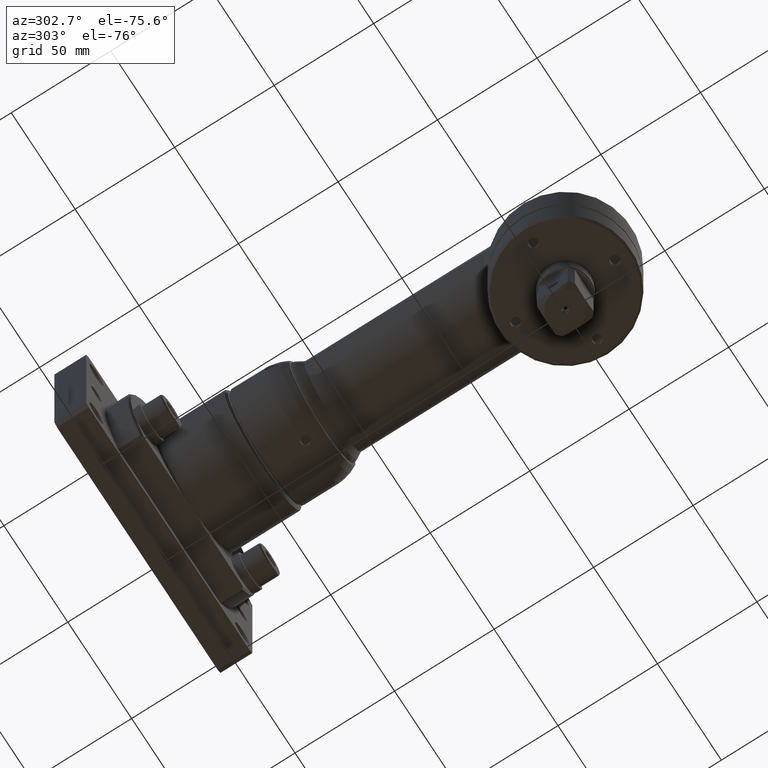
[diagram: clean part render]
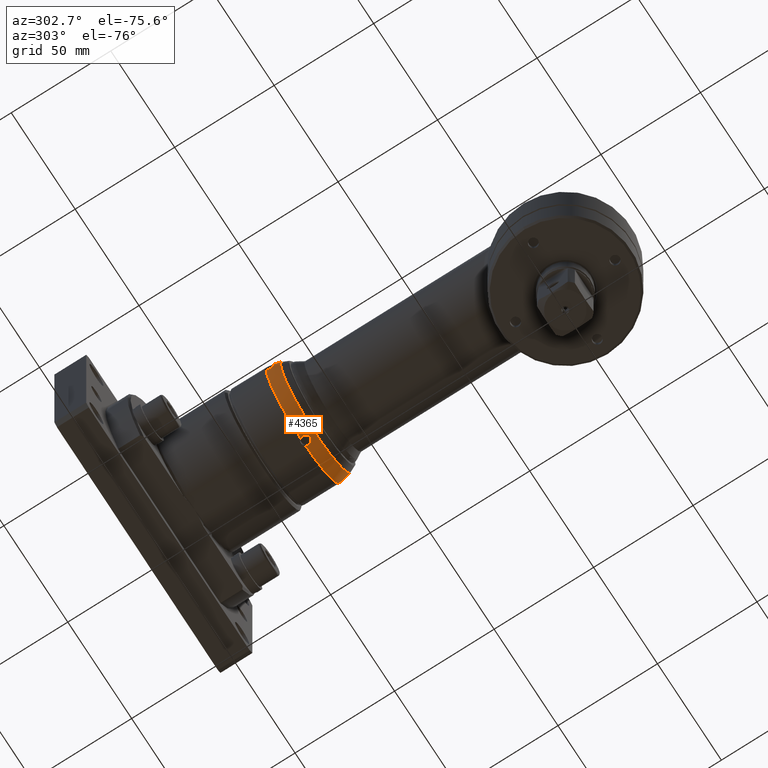
[diagram: same view with one face highlighted and labeled with its STEP entity id]
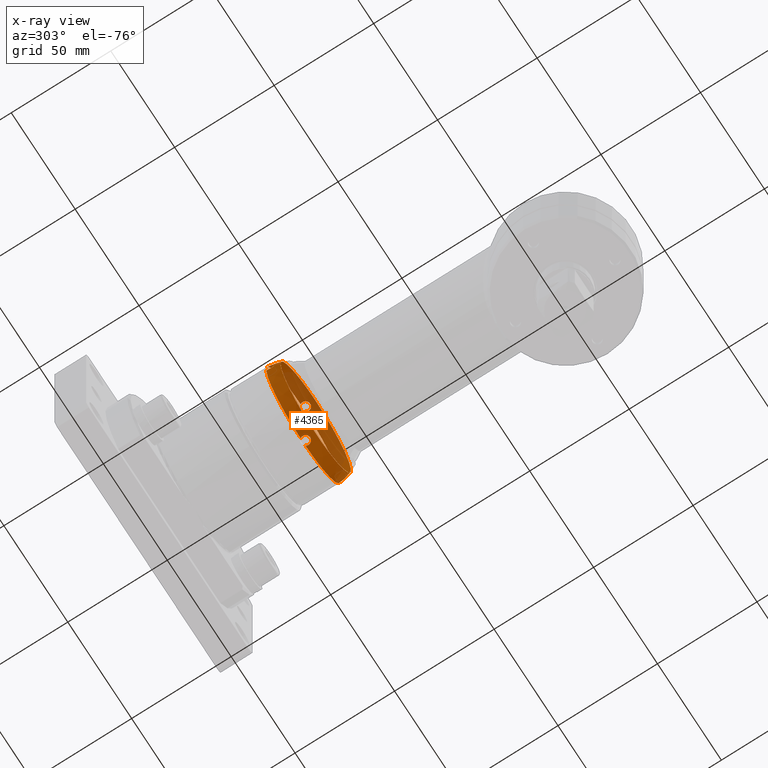
[diagram: x-ray of the same camera — body ghosted, the highlighted face saturated]
A machine part, auxiliary view. The second image highlights one B-rep face of the part: STEP entity #4365.
The next image is the same camera in x-ray: the body ghosted, the highlighted face saturated — about 39% of this face is hidden behind the body in this view.
In plain terms, the highlighted face is a freeform B-spline surface patch.
Its self-contained STEP definition (entity closure, byte-faithful):
#33=(
BOUNDED_SURFACE()
B_SPLINE_SURFACE(2,2,((#7202,#7203,#7204,#7205,#7206,#7207,#7208,#7209,
#7210),(#7211,#7212,#7213,#7214,#7215,#7216,#7217,#7218,#7219),(#7220,#7221,
#7222,#7223,#7224,#7225,#7226,#7227,#7228)),.UNSPECIFIED.,.F.,.T.,.F.)
B_SPLINE_SURFACE_WITH_KNOTS((3,3),(3,2,2,2,3),(-0.436332312998584,5.22063444595957E-16),
(-3.14159265358979,-1.5707963267949,0.,1.5707963267949,3.14159265358979),
 .UNSPECIFIED.)
GEOMETRIC_REPRESENTATION_ITEM()
RATIONAL_B_SPLINE_SURFACE(((1.,0.707106781186548,1.,0.707106781186548,1.,
0.707106781186548,1.,0.707106781186548,1.),(0.976296007119913,0.690345527079841,
0.976296007119913,0.690345527079841,0.976296007119913,0.690345527079841,
0.976296007119913,0.690345527079841,0.976296007119913),(1.,0.707106781186548,
1.,0.707106781186548,1.,0.707106781186548,1.,0.707106781186548,1.)))
REPRESENTATION_ITEM('')
SURFACE()
);
#40=(
BOUNDED_CURVE()
B_SPLINE_CURVE(2,(#7230,#7231,#7232),.UNSPECIFIED.,.F.,.F.)
B_SPLINE_CURVE_WITH_KNOTS((3,3),(0.239463070267476,0.436332312998584),
 .UNSPECIFIED.)
CURVE()
GEOMETRIC_REPRESENTATION_ITEM()
RATIONAL_B_SPLINE_CURVE((0.988260944161363,0.989304970113407,1.))
REPRESENTATION_ITEM('')
);
#78=B_SPLINE_CURVE_WITH_KNOTS('',3,(#6977,#6978,#6979,#6980,#6981,#6982),
 .UNSPECIFIED.,.F.,.F.,(4,2,4),(1.45252363211347,1.54151102947429,1.58642004414061),
 .UNSPECIFIED.);
#81=B_SPLINE_CURVE_WITH_KNOTS('',3,(#7001,#7002,#7003,#7004,#7005,#7006,
#7007,#7008,#7009,#7010,#7011,#7012,#7013,#7014,#7015,#7016,#7017,#7018,
#7019,#7020,#7021,#7022,#7023,#7024),.UNSPECIFIED.,.F.,.F.,(4,2,2,2,2,2,
2,2,2,2,2,4),(1.58642004414061,1.63166947877497,1.72350590285626,1.80686499335692,
1.89300933337653,1.97573283851944,2.06003012041522,2.15043110751916,2.24037156059606,
2.33105106582288,2.42222135600999,2.44755810338013),.UNSPECIFIED.);
#82=B_SPLINE_CURVE_WITH_KNOTS('',3,(#7044,#7045,#7046,#7047,#7048,#7049),
 .UNSPECIFIED.,.F.,.F.,(4,2,4),(0.457564260932313,0.528158609510074,0.591513390285459),
 .UNSPECIFIED.);
#85=B_SPLINE_CURVE_WITH_KNOTS('',3,(#7069,#7070,#7071,#7072,#7073,#7074,
#7075,#7076,#7077,#7078,#7079,#7080,#7081,#7082,#7083,#7084),
 .UNSPECIFIED.,.F.,.F.,(4,2,2,2,2,2,2,4),(0.955181562477162,0.971865596657126,
1.05575365381431,1.14532783138233,1.23516008338938,1.3257799048816,1.41689698999684,
1.45262684494953),.UNSPECIFIED.);
#86=B_SPLINE_CURVE_WITH_KNOTS('',3,(#7085,#7086,#7087,#7088,#7089,#7090,
#7091,#7092,#7093,#7094,#7095,#7096),.UNSPECIFIED.,.F.,.F.,(4,2,2,2,2,4),
(0.591513390285459,0.618009742759396,0.709510768436431,0.802210383403831,
0.889003864128221,0.955181562477162),.UNSPECIFIED.);
#87=B_SPLINE_CURVE_WITH_KNOTS('',3,(#7101,#7102,#7103,#7104,#7105,#7106),
 .UNSPECIFIED.,.F.,.F.,(4,2,4),(1.45252363211279,1.54151102947361,1.58642004413992),
 .UNSPECIFIED.);
#90=B_SPLINE_CURVE_WITH_KNOTS('',3,(#7125,#7126,#7127,#7128,#7129,#7130,
#7131,#7132,#7133,#7134,#7135,#7136,#7137,#7138,#7139,#7140,#7141,#7142,
#7143,#7144,#7145,#7146,#7147,#7148),.UNSPECIFIED.,.F.,.F.,(4,2,2,2,2,2,
2,2,2,2,2,4),(1.58642004413992,1.63166947877427,1.72350590285554,1.80686499335617,
1.89300933337574,1.97573283851862,2.06003012041437,2.15043110751826,2.24037156059511,
2.33105106582188,2.42222135600895,2.44755810337907),.UNSPECIFIED.);
#91=B_SPLINE_CURVE_WITH_KNOTS('',3,(#7153,#7154,#7155,#7156,#7157,#7158),
 .UNSPECIFIED.,.F.,.F.,(4,2,4),(1.45252363211326,1.54151102947409,1.58642004414041),
 .UNSPECIFIED.);
#94=B_SPLINE_CURVE_WITH_KNOTS('',3,(#7177,#7178,#7179,#7180,#7181,#7182,
#7183,#7184,#7185,#7186,#7187,#7188,#7189,#7190,#7191,#7192,#7193,#7194,
#7195,#7196,#7197,#7198,#7199,#7200),.UNSPECIFIED.,.F.,.F.,(4,2,2,2,2,2,
2,2,2,2,2,4),(1.58642004414041,1.63166947877476,1.72350590285605,1.8068649933567,
1.89300933337629,1.9757328385192,2.06003012041497,2.15043110751889,2.24037156059577,
2.33105106582258,2.42222135600968,2.44755810337981),.UNSPECIFIED.);
#774=FACE_OUTER_BOUND('',#1030,.T.);
#1030=EDGE_LOOP('',(#3016,#3017,#3018,#3019,#3020,#3021,#3022,#3023,#3024,
#3025,#3026,#3027,#3028,#3029,#3030,#3031,#3032,#3033));
#1338=CIRCLE('',#4685,27.5946168055497);
#1339=CIRCLE('',#4686,27.5946168055497);
#1340=CIRCLE('',#4687,27.5946168055497);
#1341=CIRCLE('',#4688,29.);
#1342=CIRCLE('',#4689,29.);
#1343=CIRCLE('',#4690,29.);
#1344=CIRCLE('',#4691,29.);
#1722=VERTEX_POINT('',#6975);
#1723=VERTEX_POINT('',#6976);
#1725=VERTEX_POINT('',#6992);
#1732=VERTEX_POINT('',#7042);
#1733=VERTEX_POINT('',#7043);
#1735=VERTEX_POINT('',#7059);
#1736=VERTEX_POINT('',#7068);
#1737=VERTEX_POINT('',#7099);
#1738=VERTEX_POINT('',#7100);
#1740=VERTEX_POINT('',#7116);
#1741=VERTEX_POINT('',#7151);
#1742=VERTEX_POINT('',#7152);
#1744=VERTEX_POINT('',#7168);
#1745=VERTEX_POINT('',#7229);
#1746=VERTEX_POINT('',#7233);
#1747=VERTEX_POINT('',#7235);
#2212=EDGE_CURVE('',#1722,#1723,#78,.T.);
#2215=EDGE_CURVE('',#1723,#1725,#81,.T.);
#2223=EDGE_CURVE('',#1732,#1733,#82,.T.);
#2226=EDGE_CURVE('',#1736,#1735,#85,.T.);
#2227=EDGE_CURVE('',#1733,#1736,#86,.T.);
#2229=EDGE_CURVE('',#1737,#1738,#87,.T.);
#2232=EDGE_CURVE('',#1738,#1740,#90,.T.);
#2234=EDGE_CURVE('',#1741,#1742,#91,.T.);
#2237=EDGE_CURVE('',#1742,#1744,#94,.T.);
#2239=EDGE_CURVE('',#1736,#1745,#40,.T.);
#2240=EDGE_CURVE('',#1745,#1746,#1338,.T.);
#2241=EDGE_CURVE('',#1746,#1747,#1339,.T.);
#2242=EDGE_CURVE('',#1747,#1745,#1340,.T.);
#2243=EDGE_CURVE('',#1735,#1722,#1341,.T.);
#2244=EDGE_CURVE('',#1725,#1737,#1342,.T.);
#2245=EDGE_CURVE('',#1740,#1741,#1343,.T.);
#2246=EDGE_CURVE('',#1744,#1732,#1344,.T.);
#3016=ORIENTED_EDGE('',*,*,#2223,.T.);
#3017=ORIENTED_EDGE('',*,*,#2227,.T.);
#3018=ORIENTED_EDGE('',*,*,#2239,.T.);
#3019=ORIENTED_EDGE('',*,*,#2240,.T.);
#3020=ORIENTED_EDGE('',*,*,#2241,.T.);
#3021=ORIENTED_EDGE('',*,*,#2242,.T.);
#3022=ORIENTED_EDGE('',*,*,#2239,.F.);
#3023=ORIENTED_EDGE('',*,*,#2226,.T.);
#3024=ORIENTED_EDGE('',*,*,#2243,.T.);
#3025=ORIENTED_EDGE('',*,*,#2212,.T.);
#3026=ORIENTED_EDGE('',*,*,#2215,.T.);
#3027=ORIENTED_EDGE('',*,*,#2244,.T.);
#3028=ORIENTED_EDGE('',*,*,#2229,.T.);
#3029=ORIENTED_EDGE('',*,*,#2232,.T.);
#3030=ORIENTED_EDGE('',*,*,#2245,.T.);
#3031=ORIENTED_EDGE('',*,*,#2234,.T.);
#3032=ORIENTED_EDGE('',*,*,#2237,.T.);
#3033=ORIENTED_EDGE('',*,*,#2246,.T.);
#4365=ADVANCED_FACE('',(#774),#33,.F.);
#4685=AXIS2_PLACEMENT_3D('',#7234,#5427,#5428);
#4686=AXIS2_PLACEMENT_3D('',#7236,#5429,#5430);
#4687=AXIS2_PLACEMENT_3D('',#7237,#5431,#5432);
#4688=AXIS2_PLACEMENT_3D('',#7238,#5433,#5434);
#4689=AXIS2_PLACEMENT_3D('',#7239,#5435,#5436);
#4690=AXIS2_PLACEMENT_3D('',#7240,#5437,#5438);
#4691=AXIS2_PLACEMENT_3D('',#7241,#5439,#5440);
#5427=DIRECTION('center_axis',(2.95888610257492E-16,1.,-8.06750557851536E-16));
#5428=DIRECTION('ref_axis',(0.707106781186549,-7.79683632971787E-16,-0.707106781186546));
#5429=DIRECTION('center_axis',(2.95888610257492E-16,1.,-8.06750557851536E-16));
#5430=DIRECTION('ref_axis',(0.707106781186549,-7.79683632971787E-16,-0.707106781186546));
#5431=DIRECTION('center_axis',(2.95888610257492E-16,1.,-8.06750557851536E-16));
#5432=DIRECTION('ref_axis',(0.707106781186549,-7.79683632971787E-16,-0.707106781186546));
#5433=DIRECTION('center_axis',(-3.24337863054654E-16,-1.,8.18789480661057E-16));
#5434=DIRECTION('ref_axis',(0.707106781186549,-8.150425356873E-16,-0.707106781186546));
#5435=DIRECTION('center_axis',(-3.24337863054654E-16,-1.,8.18789480661057E-16));
#5436=DIRECTION('ref_axis',(0.707106781186549,-8.150425356873E-16,-0.707106781186546));
#5437=DIRECTION('center_axis',(-3.24337863054654E-16,-1.,8.18789480661057E-16));
#5438=DIRECTION('ref_axis',(0.707106781186549,-8.150425356873E-16,-0.707106781186546));
#5439=DIRECTION('center_axis',(-3.24337863054654E-16,-1.,8.18789480661057E-16));
#5440=DIRECTION('ref_axis',(0.707106781186549,-8.150425356873E-16,-0.707106781186546));
#6975=CARTESIAN_POINT('',(-1.92485541513373,131.758940689607,-28.9360489982797));
#6976=CARTESIAN_POINT('',(-2.29999999999996,130.5,-28.85555725459));
#6977=CARTESIAN_POINT('Ctrl Pts',(-1.92485540984292,131.758940686131,-28.9360489986317));
#6978=CARTESIAN_POINT('Ctrl Pts',(-2.08710999923811,131.510861783281,-28.9252556580689));
#6979=CARTESIAN_POINT('Ctrl Pts',(-2.19973783392924,131.233991403008,-28.9101243358409));
#6980=CARTESIAN_POINT('Ctrl Pts',(-2.28562403116255,130.797036982948,-28.8795560857451));
#6981=CARTESIAN_POINT('Ctrl Pts',(-2.29999999999996,130.648474232846,-28.8681023902828));
#6982=CARTESIAN_POINT('Ctrl Pts',(-2.29999999999996,130.5,-28.85555725459));
#6992=CARTESIAN_POINT('',(1.92485541513381,131.758940689607,-28.9360489982797));
#7001=CARTESIAN_POINT('Ctrl Pts',(-2.29999999999996,130.5,-28.85555725459));
#7002=CARTESIAN_POINT('Ctrl Pts',(-2.29999999999996,130.350400302617,-28.8429170242464));
#7003=CARTESIAN_POINT('Ctrl Pts',(-2.28540494727702,130.200890495236,-28.8291684401034));
#7004=CARTESIAN_POINT('Ctrl Pts',(-2.1971233557519,129.754679201341,-28.7848644528748));
#7005=CARTESIAN_POINT('Ctrl Pts',(-2.07919167114597,129.470611070839,-28.752047002306));
#7006=CARTESIAN_POINT('Ctrl Pts',(-1.75544508735835,128.988453934041,-28.6905112349224));
#7007=CARTESIAN_POINT('Ctrl Pts',(-1.56117238539515,128.788457718003,-28.6622404620575));
#7008=CARTESIAN_POINT('Ctrl Pts',(-1.1029296429189,128.461522823398,-28.6137535408553));
#7009=CARTESIAN_POINT('Ctrl Pts',(-0.840762864238996,128.34003773313,-28.5943442891986));
#7010=CARTESIAN_POINT('Ctrl Pts',(-0.295413379975349,128.20247044375,-28.5721700268484));
#7011=CARTESIAN_POINT('Ctrl Pts',(-0.0183120761655834,128.183608576838,
-28.5690112134072));
#7012=CARTESIAN_POINT('Ctrl Pts',(0.534861590466751,128.245482967739,-28.5791101311449));
#7013=CARTESIAN_POINT('Ctrl Pts',(0.805586173616262,128.327538849767,-28.5925670676066));
#7014=CARTESIAN_POINT('Ctrl Pts',(1.32177234648596,128.593888166948,-28.6337047610526));
#7015=CARTESIAN_POINT('Ctrl Pts',(1.55890744536504,128.782539644893,-28.661850790536));
#7016=CARTESIAN_POINT('Ctrl Pts',(1.94605314624124,129.238323972959,-28.7232913851299));
#7017=CARTESIAN_POINT('Ctrl Pts',(2.09308943812176,129.501030730705,-28.7559102160177));
#7018=CARTESIAN_POINT('Ctrl Pts',(2.27942620207394,130.070294014824,-28.817568134433));
#7019=CARTESIAN_POINT('Ctrl Pts',(2.3161256053114,130.371975221746,-28.8459545240423));
#7020=CARTESIAN_POINT('Ctrl Pts',(2.27079578811786,130.97465828952,-28.8934603776657));
#7021=CARTESIAN_POINT('Ctrl Pts',(2.18857438969639,131.269622420988,-28.9120739070447));
#7022=CARTESIAN_POINT('Ctrl Pts',(2.0130740758841,131.61563959528,-28.9295739770529));
#7023=CARTESIAN_POINT('Ctrl Pts',(1.97086810514513,131.688589647,-28.9329881872706));
#7024=CARTESIAN_POINT('Ctrl Pts',(1.92485540984299,131.758940686131,-28.9360489986317));
#7042=CARTESIAN_POINT('',(-28.9360489982795,131.758940689607,1.92485541513348));
#7043=CARTESIAN_POINT('',(-28.8555572545898,130.5,2.29999999999971));
#7044=CARTESIAN_POINT('Ctrl Pts',(-28.9360489986314,131.758940686132,1.92485540984267));
#7045=CARTESIAN_POINT('Ctrl Pts',(-28.9275136553014,131.562760588184,2.05316588233426));
#7046=CARTESIAN_POINT('Ctrl Pts',(-28.9162648349874,131.347921927443,2.15085985500654));
#7047=CARTESIAN_POINT('Ctrl Pts',(-28.8887376116456,130.91883985013,2.2713448903516));
#7048=CARTESIAN_POINT('Ctrl Pts',(-28.8732687627411,130.709619301832,2.29999999999971));
#7049=CARTESIAN_POINT('Ctrl Pts',(-28.8555572545898,130.5,2.29999999999971));
#7059=CARTESIAN_POINT('',(-28.9360489982795,131.758940689607,-1.92485541513406));
#7068=CARTESIAN_POINT('',(-28.5716828501562,128.2,-2.87554425490751E-13));
#7069=CARTESIAN_POINT('Ctrl Pts',(-28.5716828501562,128.2,-2.8805387987217E-13));
#7070=CARTESIAN_POINT('Ctrl Pts',(-28.5716828501562,128.2,-0.0554454999037644));
#7071=CARTESIAN_POINT('Ctrl Pts',(-28.5720113408865,128.202004845443,-0.110951460860113));
#7072=CARTESIAN_POINT('Ctrl Pts',(-28.5759769571487,128.226256846174,-0.445264566509629));
#7073=CARTESIAN_POINT('Ctrl Pts',(-28.5876630945922,128.29711689196,-0.717738199230613));
#7074=CARTESIAN_POINT('Ctrl Pts',(-28.625629534935,128.540594224668,-1.240758390415));
#7075=CARTESIAN_POINT('Ctrl Pts',(-28.6523925323445,128.717404421136,-1.48344367067562));
#7076=CARTESIAN_POINT('Ctrl Pts',(-28.7123292004657,129.153454130575,-1.88827318119442));
#7077=CARTESIAN_POINT('Ctrl Pts',(-28.7448817477126,129.40907107424,-2.04660381421195));
#7078=CARTESIAN_POINT('Ctrl Pts',(-28.8073379161825,129.968823505228,-2.25790322177281));
#7079=CARTESIAN_POINT('Ctrl Pts',(-28.8365854377036,130.268283977467,-2.30802012493892));
#7080=CARTESIAN_POINT('Ctrl Pts',(-28.8862056801345,130.87182269123,-2.28984599435392));
#7081=CARTESIAN_POINT('Ctrl Pts',(-28.9060481095014,131.169936751005,-2.22108398454936));
#7082=CARTESIAN_POINT('Ctrl Pts',(-28.9266862732987,131.554846713585,-2.04730297566818));
#7083=CARTESIAN_POINT('Ctrl Pts',(-28.931715300838,131.659333063485,-1.99000320648152));
#7084=CARTESIAN_POINT('Ctrl Pts',(-28.9360489986314,131.758940686132,-1.92485540984324));
#7085=CARTESIAN_POINT('Ctrl Pts',(-28.8555572545898,130.5,2.29999999999971));
#7086=CARTESIAN_POINT('Ctrl Pts',(-28.8481499152054,130.412332631591,2.29999999999971));
#7087=CARTESIAN_POINT('Ctrl Pts',(-28.840355730104,130.324595059228,2.29498787611242));
#7088=CARTESIAN_POINT('Ctrl Pts',(-28.8040963486266,129.93546206896,2.25023469417586));
#7089=CARTESIAN_POINT('Ctrl Pts',(-28.7722352295093,129.643788021709,2.15612945188395));
#7090=CARTESIAN_POINT('Ctrl Pts',(-28.7071456338739,129.110646231411,1.85852498707164));
#7091=CARTESIAN_POINT('Ctrl Pts',(-28.6746030460921,128.874850335657,1.65637990954446));
#7092=CARTESIAN_POINT('Ctrl Pts',(-28.6210425871298,128.508611398172,1.18633629303179));
#7093=CARTESIAN_POINT('Ctrl Pts',(-28.5999851646645,128.37554018908,0.927462838341365));
#7094=CARTESIAN_POINT('Ctrl Pts',(-28.5768992626648,128.231538048891,0.438901069193313));
#7095=CARTESIAN_POINT('Ctrl Pts',(-28.5716828501562,128.2,0.21992615981453));
#7096=CARTESIAN_POINT('Ctrl Pts',(-28.5716828501562,128.2,-2.86090595658095E-13));
#7099=CARTESIAN_POINT('',(28.9360489982795,131.758940689607,-1.92485541513395));
#7100=CARTESIAN_POINT('',(28.8555572545897,130.5,-2.30000000000018));
#7101=CARTESIAN_POINT('Ctrl Pts',(28.9360489986314,131.758940686132,-1.92485540984314));
#7102=CARTESIAN_POINT('Ctrl Pts',(28.9252556580686,131.510861783281,-2.08710999923832));
#7103=CARTESIAN_POINT('Ctrl Pts',(28.9101243358407,131.233991403008,-2.19973783392945));
#7104=CARTESIAN_POINT('Ctrl Pts',(28.8795560857448,130.797036982948,-2.28562403116277));
#7105=CARTESIAN_POINT('Ctrl Pts',(28.8681023902825,130.648474232846,-2.30000000000018));
#7106=CARTESIAN_POINT('Ctrl Pts',(28.8555572545897,130.5,-2.30000000000018));
#7116=CARTESIAN_POINT('',(28.9360489982794,131.758940689607,1.92485541513359));
#7125=CARTESIAN_POINT('Ctrl Pts',(28.8555572545897,130.5,-2.30000000000018));
#7126=CARTESIAN_POINT('Ctrl Pts',(28.8429170242461,130.350400302617,-2.30000000000018));
#7127=CARTESIAN_POINT('Ctrl Pts',(28.8291684401031,130.200890495236,-2.28540494727723));
#7128=CARTESIAN_POINT('Ctrl Pts',(28.7848644528745,129.754679201341,-2.19712335575212));
#7129=CARTESIAN_POINT('Ctrl Pts',(28.7520470023057,129.470611070839,-2.07919167114621));
#7130=CARTESIAN_POINT('Ctrl Pts',(28.6905112349221,128.988453934041,-1.75544508735858));
#7131=CARTESIAN_POINT('Ctrl Pts',(28.6622404620572,128.788457718003,-1.56117238539538));
#7132=CARTESIAN_POINT('Ctrl Pts',(28.613753540855,128.461522823398,-1.10292964291913));
#7133=CARTESIAN_POINT('Ctrl Pts',(28.5943442891983,128.34003773313,-0.840762864239226));
#7134=CARTESIAN_POINT('Ctrl Pts',(28.5721700268481,128.20247044375,-0.295413379975581));
#7135=CARTESIAN_POINT('Ctrl Pts',(28.5690112134069,128.183608576838,-0.0183120761658156));
#7136=CARTESIAN_POINT('Ctrl Pts',(28.5791101311446,128.245482967739,0.534861590466509));
#7137=CARTESIAN_POINT('Ctrl Pts',(28.5925670676064,128.327538849767,0.805586173616014));
#7138=CARTESIAN_POINT('Ctrl Pts',(28.6337047610523,128.593888166948,1.32177234648574));
#7139=CARTESIAN_POINT('Ctrl Pts',(28.6618507905358,128.782539644893,1.55890744536482));
#7140=CARTESIAN_POINT('Ctrl Pts',(28.7232913851297,129.238323972959,1.94605314624101));
#7141=CARTESIAN_POINT('Ctrl Pts',(28.7559102160174,129.501030730705,2.09308943812153));
#7142=CARTESIAN_POINT('Ctrl Pts',(28.8175681344327,130.070294014824,2.27942620207371));
#7143=CARTESIAN_POINT('Ctrl Pts',(28.8459545240421,130.371975221746,2.31612560531117));
#7144=CARTESIAN_POINT('Ctrl Pts',(28.8934603776654,130.97465828952,2.27079578811764));
#7145=CARTESIAN_POINT('Ctrl Pts',(28.9120739070444,131.269622420988,2.18857438969618));
#7146=CARTESIAN_POINT('Ctrl Pts',(28.9295739770526,131.61563959528,2.01307407588388));
#7147=CARTESIAN_POINT('Ctrl Pts',(28.9329881872703,131.688589647,1.97086810514491));
#7148=CARTESIAN_POINT('Ctrl Pts',(28.9360489986314,131.758940686132,1.92485540984277));
#7151=CARTESIAN_POINT('',(1.9248554151337,131.758940689607,28.9360489982792));
#7152=CARTESIAN_POINT('',(2.29999999999993,130.5,28.8555572545895));
#7153=CARTESIAN_POINT('Ctrl Pts',(1.92485540984288,131.758940686132,28.9360489986312));
#7154=CARTESIAN_POINT('Ctrl Pts',(2.08710999923807,131.510861783281,28.9252556580684));
#7155=CARTESIAN_POINT('Ctrl Pts',(2.19973783392921,131.233991403008,28.9101243358405));
#7156=CARTESIAN_POINT('Ctrl Pts',(2.28562403116252,130.797036982948,28.8795560857446));
#7157=CARTESIAN_POINT('Ctrl Pts',(2.29999999999993,130.648474232846,28.8681023902823));
#7158=CARTESIAN_POINT('Ctrl Pts',(2.29999999999993,130.5,28.8555572545895));
#7168=CARTESIAN_POINT('',(-1.92485541513384,131.758940689607,28.9360489982792));
#7177=CARTESIAN_POINT('Ctrl Pts',(2.29999999999993,130.5,28.8555572545895));
#7178=CARTESIAN_POINT('Ctrl Pts',(2.29999999999993,130.350400302617,28.8429170242459));
#7179=CARTESIAN_POINT('Ctrl Pts',(2.28540494727698,130.200890495236,28.8291684401029));
#7180=CARTESIAN_POINT('Ctrl Pts',(2.19712335575187,129.754679201341,28.7848644528743));
#7181=CARTESIAN_POINT('Ctrl Pts',(2.07919167114596,129.470611070839,28.7520470023055));
#7182=CARTESIAN_POINT('Ctrl Pts',(1.75544508735832,128.988453934041,28.6905112349219));
#7183=CARTESIAN_POINT('Ctrl Pts',(1.56117238539513,128.788457718003,28.662240462057));
#7184=CARTESIAN_POINT('Ctrl Pts',(1.10292964291889,128.461522823398,28.6137535408548));
#7185=CARTESIAN_POINT('Ctrl Pts',(0.840762864238985,128.34003773313,28.5943442891981));
#7186=CARTESIAN_POINT('Ctrl Pts',(0.295413379975328,128.20247044375,28.5721700268479));
#7187=CARTESIAN_POINT('Ctrl Pts',(0.0183120761655666,128.183608576838,28.5690112134067));
#7188=CARTESIAN_POINT('Ctrl Pts',(-0.534861590466756,128.245482967739,28.5791101311444));
#7189=CARTESIAN_POINT('Ctrl Pts',(-0.805586173616263,128.327538849767,28.5925670676061));
#7190=CARTESIAN_POINT('Ctrl Pts',(-1.32177234648599,128.593888166948,28.6337047610521));
#7191=CARTESIAN_POINT('Ctrl Pts',(-1.55890744536507,128.782539644893,28.6618507905355));
#7192=CARTESIAN_POINT('Ctrl Pts',(-1.94605314624126,129.238323972959,28.7232913851295));
#7193=CARTESIAN_POINT('Ctrl Pts',(-2.09308943812178,129.501030730705,28.7559102160172));
#7194=CARTESIAN_POINT('Ctrl Pts',(-2.27942620207397,130.070294014824,28.8175681344325));
#7195=CARTESIAN_POINT('Ctrl Pts',(-2.31612560531143,130.371975221746,28.8459545240419));
#7196=CARTESIAN_POINT('Ctrl Pts',(-2.2707957881179,130.97465828952,28.8934603776652));
#7197=CARTESIAN_POINT('Ctrl Pts',(-2.18857438969643,131.269622420988,28.9120739070442));
#7198=CARTESIAN_POINT('Ctrl Pts',(-2.01307407588413,131.61563959528,28.9295739770524));
#7199=CARTESIAN_POINT('Ctrl Pts',(-1.97086810514515,131.688589647,28.9329881872701));
#7200=CARTESIAN_POINT('Ctrl Pts',(-1.92485540984302,131.758940686132,28.9360489986312));
#7202=CARTESIAN_POINT('Ctrl Pts',(-27.5946168055498,125.419666775062,-2.87347142188761E-13));
#7203=CARTESIAN_POINT('Ctrl Pts',(-27.5946168055498,125.419666775062,27.5946168055495));
#7204=CARTESIAN_POINT('Ctrl Pts',(-7.3686707442867E-14,125.419666775062,
27.5946168055495));
#7205=CARTESIAN_POINT('Ctrl Pts',(27.5946168055497,125.419666775062,27.5946168055496));
#7206=CARTESIAN_POINT('Ctrl Pts',(27.5946168055497,125.419666775062,-1.78773342791329E-13));
#7207=CARTESIAN_POINT('Ctrl Pts',(27.5946168055498,125.419666775062,-27.5946168055499));
#7208=CARTESIAN_POINT('Ctrl Pts',(3.4887091954565E-14,125.419666775062,
-27.59461680555));
#7209=CARTESIAN_POINT('Ctrl Pts',(-27.5946168055497,125.419666775062,-27.59461680555));
#7210=CARTESIAN_POINT('Ctrl Pts',(-27.5946168055498,125.419666775062,-2.87347142188761E-13));
#7211=CARTESIAN_POINT('Ctrl Pts',(-29.,128.433520761528,-2.92579664999777E-13));
#7212=CARTESIAN_POINT('Ctrl Pts',(-29.0000000000001,128.433520761528,28.9999999999997));
#7213=CARTESIAN_POINT('Ctrl Pts',(-7.54740113519869E-14,128.433520761528,
28.9999999999998));
#7214=CARTESIAN_POINT('Ctrl Pts',(28.9999999999999,128.433520761528,28.9999999999998));
#7215=CARTESIAN_POINT('Ctrl Pts',(29.,128.433520761528,-1.78476243861047E-13));
#7216=CARTESIAN_POINT('Ctrl Pts',(29.,128.433520761528,-29.0000000000002));
#7217=CARTESIAN_POINT('Ctrl Pts',(3.86294097867435E-14,128.433520761528,
-29.0000000000002));
#7218=CARTESIAN_POINT('Ctrl Pts',(-29.,128.433520761528,-29.0000000000003));
#7219=CARTESIAN_POINT('Ctrl Pts',(-29.,128.433520761528,-2.92579664999777E-13));
#7220=CARTESIAN_POINT('Ctrl Pts',(-29.,131.758940701172,-2.95302483865138E-13));
#7221=CARTESIAN_POINT('Ctrl Pts',(-29.0000000000001,131.758940701172,28.9999999999997));
#7222=CARTESIAN_POINT('Ctrl Pts',(-7.43954517550033E-14,131.758940701172,
28.9999999999998));
#7223=CARTESIAN_POINT('Ctrl Pts',(28.9999999999999,131.758940701172,28.9999999999998));
#7224=CARTESIAN_POINT('Ctrl Pts',(29.,131.758940701172,-1.81199062726408E-13));
#7225=CARTESIAN_POINT('Ctrl Pts',(29.,131.758940701172,-29.0000000000002));
#7226=CARTESIAN_POINT('Ctrl Pts',(3.97079693837269E-14,131.758940701172,
-29.0000000000002));
#7227=CARTESIAN_POINT('Ctrl Pts',(-29.,131.758940701172,-29.0000000000003));
#7228=CARTESIAN_POINT('Ctrl Pts',(-29.,131.758940701172,-2.95302483865138E-13));
#7229=CARTESIAN_POINT('',(-27.5946168055498,125.419666775062,-2.83967776274299E-13));
#7230=CARTESIAN_POINT('Ctrl Pts',(-28.5716828501562,128.2,-2.91545832171729E-13));
#7231=CARTESIAN_POINT('Ctrl Pts',(-28.2203750391194,126.761609637518,-2.89676965289154E-13));
#7232=CARTESIAN_POINT('Ctrl Pts',(-27.5946168055498,125.419666775062,-2.87347142188761E-13));
#7233=CARTESIAN_POINT('',(-19.5123406674486,125.419666775062,19.5123406674482));
#7234=CARTESIAN_POINT('Origin',(-1.9399807744151E-14,125.419666775062,-2.30409479478192E-13));
#7235=CARTESIAN_POINT('',(-7.03073415284056E-14,125.419666775062,27.5946168055495));
#7236=CARTESIAN_POINT('Origin',(-1.9399807744151E-14,125.419666775062,-2.30409479478192E-13));
#7237=CARTESIAN_POINT('Origin',(-1.9399807744151E-14,125.419666775062,-2.30409479478192E-13));
#7238=CARTESIAN_POINT('Origin',(-1.73437411856382E-14,131.758940701172,
-2.38250773295773E-13));
#7239=CARTESIAN_POINT('Origin',(-1.73437411856382E-14,131.758940701172,
-2.38250773295773E-13));
#7240=CARTESIAN_POINT('Origin',(-1.73437411856382E-14,131.758940701172,
-2.38250773295773E-13));
#7241=CARTESIAN_POINT('Origin',(-1.73437411856382E-14,131.758940701172,
-2.38250773295773E-13));